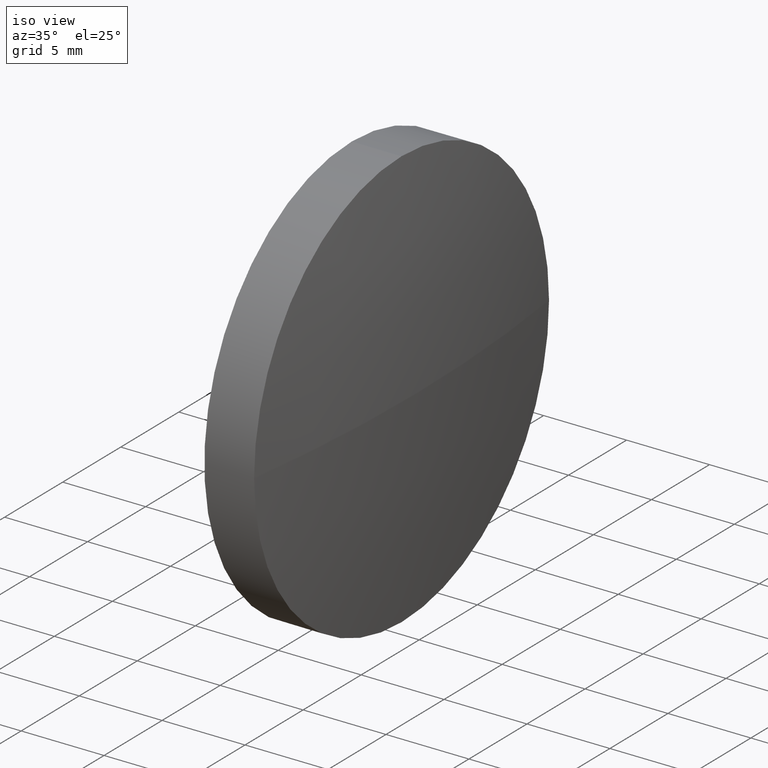
[diagram: clean part render]
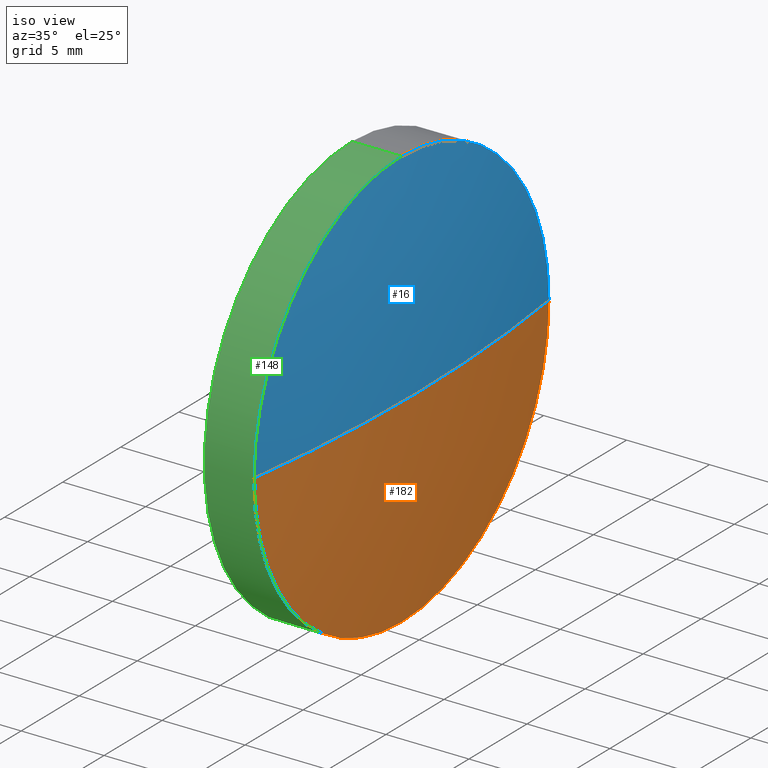
[diagram: same view with three faces highlighted in distinct colors, each labeled with its STEP entity id]
A machine part, iso view with three faces highlighted in distinct colors.
Their STEP definitions:

[orange] entity #182 — the highlighted spherical surface has radius 91.8 mm.
#1 = CARTESIAN_POINT ( 'NONE',  ( 118.7738765174393800, 65.23355492641219700, 0.0000000000000000000 ) ) ;
#3 = DIRECTION ( 'NONE',  ( 0.0000000000000000000, 1.224646799147353200E-016, -1.000000000000000000 ) ) ;
#7 = CARTESIAN_POINT ( 'NONE',  ( 27.85660643083812700, 65.23355492641219700, 0.0000000000000000000 ) ) ;
#9 = SPHERICAL_SURFACE ( 'NONE', #28, 91.79999999999999700 ) ;
#15 = VERTEX_POINT ( 'NONE', #171 ) ;
#18 = DIRECTION ( 'NONE',  ( -1.000000000000000000, -0.0000000000000000000, -0.0000000000000000000 ) ) ;
#21 = CIRCLE ( 'NONE', #173, 91.79999999999999700 ) ;
#28 = AXIS2_PLACEMENT_3D ( 'NONE', #163, #37, #47 ) ;
#29 = FACE_OUTER_BOUND ( 'NONE', #157, .T. ) ;
#32 = CIRCLE ( 'NONE', #142, 12.70000000000000300 ) ;
#37 = DIRECTION ( 'NONE',  ( -0.0000000000000000000, 0.0000000000000000000, -1.000000000000000000 ) ) ;
#46 = EDGE_CURVE ( 'NONE', #15, #152, #62, .T. ) ;
#47 = DIRECTION ( 'NONE',  ( 0.0000000000000000000, 1.000000000000000000, 0.0000000000000000000 ) ) ;
#50 = ORIENTED_EDGE ( 'NONE', *, *, #46, .F. ) ;
#54 = CIRCLE ( 'NONE', #146, 91.79999999999999700 ) ;
#55 = EDGE_CURVE ( 'NONE', #152, #89, #32, .T. ) ;
#58 = VERTEX_POINT ( 'NONE', #92 ) ;
#61 = DIRECTION ( 'NONE',  ( -1.000000000000000000, -0.0000000000000000000, -0.0000000000000000000 ) ) ;
#62 = CIRCLE ( 'NONE', #165, 12.70000000000000300 ) ;
#64 = CARTESIAN_POINT ( 'NONE',  ( 118.7738765174393800, 65.23355492641219700, -12.70000000000000300 ) ) ;
#67 = DIRECTION ( 'NONE',  ( -0.0000000000000000000, 0.0000000000000000000, 1.000000000000000000 ) ) ;
#71 = ORIENTED_EDGE ( 'NONE', *, *, #127, .F. ) ;
#74 = DIRECTION ( 'NONE',  ( 0.0000000000000000000, 0.0000000000000000000, 1.000000000000000000 ) ) ;
#77 = DIRECTION ( 'NONE',  ( 1.000000000000000000, 0.0000000000000000000, 0.0000000000000000000 ) ) ;
#89 = VERTEX_POINT ( 'NONE', #169 ) ;
#91 = CARTESIAN_POINT ( 'NONE',  ( 118.7738765174393800, 65.23355492641219700, 0.0000000000000000000 ) ) ;
#92 = CARTESIAN_POINT ( 'NONE',  ( 119.6566064308381100, 65.23355492641219700, 0.0000000000000000000 ) ) ;
#104 = EDGE_CURVE ( 'NONE', #58, #89, #54, .T. ) ;
#127 = EDGE_CURVE ( 'NONE', #58, #15, #21, .T. ) ;
#136 = DIRECTION ( 'NONE',  ( 0.0000000000000000000, 0.0000000000000000000, 1.000000000000000000 ) ) ;
#140 = DIRECTION ( 'NONE',  ( 0.0000000000000000000, 1.000000000000000000, 1.224646799147353200E-016 ) ) ;
#142 = AXIS2_PLACEMENT_3D ( 'NONE', #1, #18, #74 ) ;
#146 = AXIS2_PLACEMENT_3D ( 'NONE', #162, #3, #140 ) ;
#152 = VERTEX_POINT ( 'NONE', #64 ) ;
#157 = EDGE_LOOP ( 'NONE', ( #71, #170, #185, #50 ) ) ;
#162 = CARTESIAN_POINT ( 'NONE',  ( 27.85660643083812700, 65.23355492641219700, 0.0000000000000000000 ) ) ;
#163 = CARTESIAN_POINT ( 'NONE',  ( 27.85660643083812700, 65.23355492641219700, 0.0000000000000000000 ) ) ;
#165 = AXIS2_PLACEMENT_3D ( 'NONE', #91, #61, #136 ) ;
#169 = CARTESIAN_POINT ( 'NONE',  ( 118.7738765174393800, 52.53355492641216500, -1.555301434917142000E-015 ) ) ;
#170 = ORIENTED_EDGE ( 'NONE', *, *, #104, .T. ) ;
#171 = CARTESIAN_POINT ( 'NONE',  ( 118.7738765174393800, 77.93355492641222800, 0.0000000000000000000 ) ) ;
#173 = AXIS2_PLACEMENT_3D ( 'NONE', #7, #67, #77 ) ;
#182 = ADVANCED_FACE ( 'NONE', ( #29 ), #9, .T. ) ;
#185 = ORIENTED_EDGE ( 'NONE', *, *, #55, .F. ) ;

[blue] entity #16 — the highlighted spherical surface has radius 91.8 mm.
#3 = DIRECTION ( 'NONE',  ( 0.0000000000000000000, 1.224646799147353200E-016, -1.000000000000000000 ) ) ;
#4 = CARTESIAN_POINT ( 'NONE',  ( 118.7738765174393800, 65.23355492641219700, 0.0000000000000000000 ) ) ;
#5 = DIRECTION ( 'NONE',  ( -1.000000000000000000, -0.0000000000000000000, -0.0000000000000000000 ) ) ;
#7 = CARTESIAN_POINT ( 'NONE',  ( 27.85660643083812700, 65.23355492641219700, 0.0000000000000000000 ) ) ;
#15 = VERTEX_POINT ( 'NONE', #171 ) ;
#16 = ADVANCED_FACE ( 'NONE', ( #25 ), #175, .T. ) ;
#20 = DIRECTION ( 'NONE',  ( 0.0000000000000000000, 1.000000000000000000, 0.0000000000000000000 ) ) ;
#21 = CIRCLE ( 'NONE', #173, 91.79999999999999700 ) ;
#25 = FACE_OUTER_BOUND ( 'NONE', #132, .T. ) ;
#33 = VERTEX_POINT ( 'NONE', #57 ) ;
#44 = CARTESIAN_POINT ( 'NONE',  ( 27.85660643083812700, 65.23355492641219700, 0.0000000000000000000 ) ) ;
#54 = CIRCLE ( 'NONE', #146, 91.79999999999999700 ) ;
#57 = CARTESIAN_POINT ( 'NONE',  ( 118.7738765174393800, 65.23355492641219700, 12.70000000000000300 ) ) ;
#58 = VERTEX_POINT ( 'NONE', #92 ) ;
#67 = DIRECTION ( 'NONE',  ( -0.0000000000000000000, 0.0000000000000000000, 1.000000000000000000 ) ) ;
#77 = DIRECTION ( 'NONE',  ( 1.000000000000000000, 0.0000000000000000000, 0.0000000000000000000 ) ) ;
#89 = VERTEX_POINT ( 'NONE', #169 ) ;
#92 = CARTESIAN_POINT ( 'NONE',  ( 119.6566064308381100, 65.23355492641219700, 0.0000000000000000000 ) ) ;
#94 = ORIENTED_EDGE ( 'NONE', *, *, #130, .F. ) ;
#102 = DIRECTION ( 'NONE',  ( -0.0000000000000000000, 0.0000000000000000000, -1.000000000000000000 ) ) ;
#103 = CIRCLE ( 'NONE', #155, 12.70000000000000300 ) ;
#104 = EDGE_CURVE ( 'NONE', #58, #89, #54, .T. ) ;
#105 = DIRECTION ( 'NONE',  ( 0.0000000000000000000, 0.0000000000000000000, 1.000000000000000000 ) ) ;
#108 = DIRECTION ( 'NONE',  ( -1.000000000000000000, -0.0000000000000000000, -0.0000000000000000000 ) ) ;
#109 = ORIENTED_EDGE ( 'NONE', *, *, #127, .T. ) ;
#114 = ORIENTED_EDGE ( 'NONE', *, *, #104, .F. ) ;
#125 = CIRCLE ( 'NONE', #161, 12.70000000000000300 ) ;
#126 = ORIENTED_EDGE ( 'NONE', *, *, #138, .F. ) ;
#127 = EDGE_CURVE ( 'NONE', #58, #15, #21, .T. ) ;
#129 = AXIS2_PLACEMENT_3D ( 'NONE', #44, #102, #20 ) ;
#130 = EDGE_CURVE ( 'NONE', #33, #15, #103, .T. ) ;
#132 = EDGE_LOOP ( 'NONE', ( #114, #109, #94, #126 ) ) ;
#138 = EDGE_CURVE ( 'NONE', #89, #33, #125, .T. ) ;
#140 = DIRECTION ( 'NONE',  ( 0.0000000000000000000, 1.000000000000000000, 1.224646799147353200E-016 ) ) ;
#146 = AXIS2_PLACEMENT_3D ( 'NONE', #162, #3, #140 ) ;
#155 = AXIS2_PLACEMENT_3D ( 'NONE', #4, #5, #174 ) ;
#161 = AXIS2_PLACEMENT_3D ( 'NONE', #172, #108, #105 ) ;
#162 = CARTESIAN_POINT ( 'NONE',  ( 27.85660643083812700, 65.23355492641219700, 0.0000000000000000000 ) ) ;
#169 = CARTESIAN_POINT ( 'NONE',  ( 118.7738765174393800, 52.53355492641216500, -1.555301434917142000E-015 ) ) ;
#171 = CARTESIAN_POINT ( 'NONE',  ( 118.7738765174393800, 77.93355492641222800, 0.0000000000000000000 ) ) ;
#172 = CARTESIAN_POINT ( 'NONE',  ( 118.7738765174393800, 65.23355492641219700, 0.0000000000000000000 ) ) ;
#173 = AXIS2_PLACEMENT_3D ( 'NONE', #7, #67, #77 ) ;
#174 = DIRECTION ( 'NONE',  ( 0.0000000000000000000, 0.0000000000000000000, 1.000000000000000000 ) ) ;
#175 = SPHERICAL_SURFACE ( 'NONE', #129, 91.79999999999999700 ) ;

[green] entity #148 — the highlighted cylindrical surface (partial cylindrical patch) has radius 12.7 mm, axis along (-1, -0, -0).
#1 = CARTESIAN_POINT ( 'NONE',  ( 118.7738765174393800, 65.23355492641219700, 0.0000000000000000000 ) ) ;
#12 = ORIENTED_EDGE ( 'NONE', *, *, #138, .T. ) ;
#14 = LINE ( 'NONE', #85, #147 ) ;
#17 = AXIS2_PLACEMENT_3D ( 'NONE', #97, #176, #76 ) ;
#18 = DIRECTION ( 'NONE',  ( -1.000000000000000000, -0.0000000000000000000, -0.0000000000000000000 ) ) ;
#19 = FACE_OUTER_BOUND ( 'NONE', #115, .T. ) ;
#23 = VERTEX_POINT ( 'NONE', #135 ) ;
#27 = ORIENTED_EDGE ( 'NONE', *, *, #113, .F. ) ;
#32 = CIRCLE ( 'NONE', #142, 12.70000000000000300 ) ;
#33 = VERTEX_POINT ( 'NONE', #57 ) ;
#38 = AXIS2_PLACEMENT_3D ( 'NONE', #117, #151, #72 ) ;
#41 = CIRCLE ( 'NONE', #38, 12.70000000000000300 ) ;
#45 = VERTEX_POINT ( 'NONE', #73 ) ;
#55 = EDGE_CURVE ( 'NONE', #152, #89, #32, .T. ) ;
#57 = CARTESIAN_POINT ( 'NONE',  ( 118.7738765174393800, 65.23355492641219700, 12.70000000000000300 ) ) ;
#64 = CARTESIAN_POINT ( 'NONE',  ( 118.7738765174393800, 65.23355492641219700, -12.70000000000000300 ) ) ;
#70 = ORIENTED_EDGE ( 'NONE', *, *, #55, .T. ) ;
#72 = DIRECTION ( 'NONE',  ( 0.0000000000000000000, 0.0000000000000000000, 1.000000000000000000 ) ) ;
#73 = CARTESIAN_POINT ( 'NONE',  ( 115.7736064308381300, 65.23355492641219700, -12.70000000000000300 ) ) ;
#74 = DIRECTION ( 'NONE',  ( 0.0000000000000000000, 0.0000000000000000000, 1.000000000000000000 ) ) ;
#76 = DIRECTION ( 'NONE',  ( 0.0000000000000000000, 0.0000000000000000000, 1.000000000000000000 ) ) ;
#81 = EDGE_CURVE ( 'NONE', #33, #23, #166, .T. ) ;
#85 = CARTESIAN_POINT ( 'NONE',  ( 110.1653732284884500, 65.23355492641219700, -12.70000000000000300 ) ) ;
#87 = VECTOR ( 'NONE', #156, 1000.000000000000000 ) ;
#88 = EDGE_CURVE ( 'NONE', #45, #23, #41, .T. ) ;
#89 = VERTEX_POINT ( 'NONE', #169 ) ;
#93 = CARTESIAN_POINT ( 'NONE',  ( 110.1653732284884500, 65.23355492641219700, 12.70000000000000300 ) ) ;
#97 = CARTESIAN_POINT ( 'NONE',  ( 110.1653732284884500, 65.23355492641219700, 0.0000000000000000000 ) ) ;
#105 = DIRECTION ( 'NONE',  ( 0.0000000000000000000, 0.0000000000000000000, 1.000000000000000000 ) ) ;
#108 = DIRECTION ( 'NONE',  ( -1.000000000000000000, -0.0000000000000000000, -0.0000000000000000000 ) ) ;
#113 = EDGE_CURVE ( 'NONE', #152, #45, #14, .T. ) ;
#115 = EDGE_LOOP ( 'NONE', ( #27, #70, #12, #149, #178 ) ) ;
#117 = CARTESIAN_POINT ( 'NONE',  ( 115.7736064308381300, 65.23355492641219700, 0.0000000000000000000 ) ) ;
#121 = DIRECTION ( 'NONE',  ( -1.000000000000000000, -0.0000000000000000000, -0.0000000000000000000 ) ) ;
#125 = CIRCLE ( 'NONE', #161, 12.70000000000000300 ) ;
#135 = CARTESIAN_POINT ( 'NONE',  ( 115.7736064308381300, 65.23355492641219700, 12.70000000000000300 ) ) ;
#138 = EDGE_CURVE ( 'NONE', #89, #33, #125, .T. ) ;
#142 = AXIS2_PLACEMENT_3D ( 'NONE', #1, #18, #74 ) ;
#147 = VECTOR ( 'NONE', #121, 1000.000000000000000 ) ;
#148 = ADVANCED_FACE ( 'NONE', ( #19 ), #181, .T. ) ;
#149 = ORIENTED_EDGE ( 'NONE', *, *, #81, .T. ) ;
#151 = DIRECTION ( 'NONE',  ( -1.000000000000000000, -0.0000000000000000000, -0.0000000000000000000 ) ) ;
#152 = VERTEX_POINT ( 'NONE', #64 ) ;
#156 = DIRECTION ( 'NONE',  ( -1.000000000000000000, -0.0000000000000000000, -0.0000000000000000000 ) ) ;
#161 = AXIS2_PLACEMENT_3D ( 'NONE', #172, #108, #105 ) ;
#166 = LINE ( 'NONE', #93, #87 ) ;
#169 = CARTESIAN_POINT ( 'NONE',  ( 118.7738765174393800, 52.53355492641216500, -1.555301434917142000E-015 ) ) ;
#172 = CARTESIAN_POINT ( 'NONE',  ( 118.7738765174393800, 65.23355492641219700, 0.0000000000000000000 ) ) ;
#176 = DIRECTION ( 'NONE',  ( -1.000000000000000000, -0.0000000000000000000, -0.0000000000000000000 ) ) ;
#178 = ORIENTED_EDGE ( 'NONE', *, *, #88, .F. ) ;
#181 = CYLINDRICAL_SURFACE ( 'NONE', #17, 12.70000000000000300 ) ;